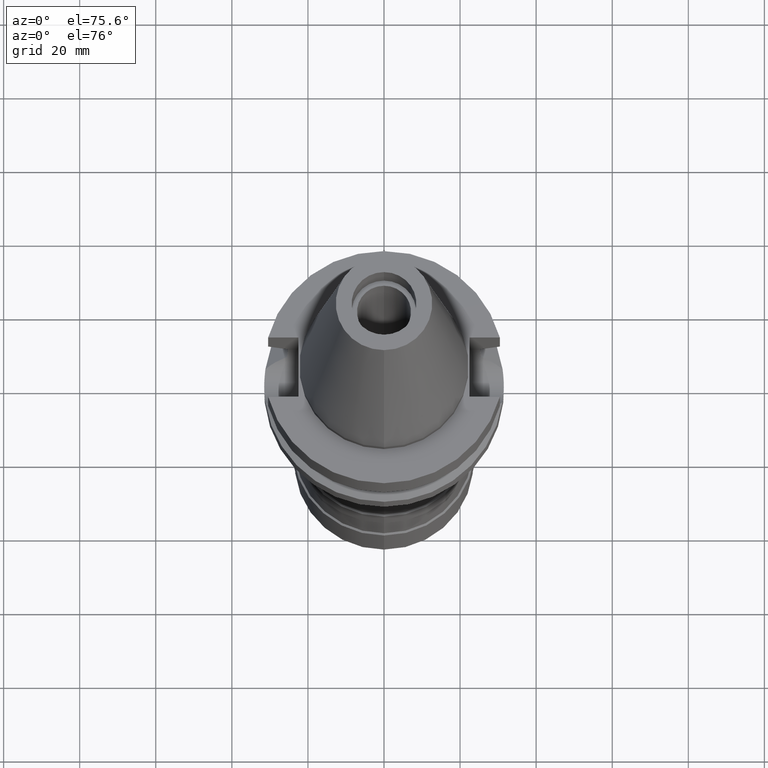
[diagram: clean part render]
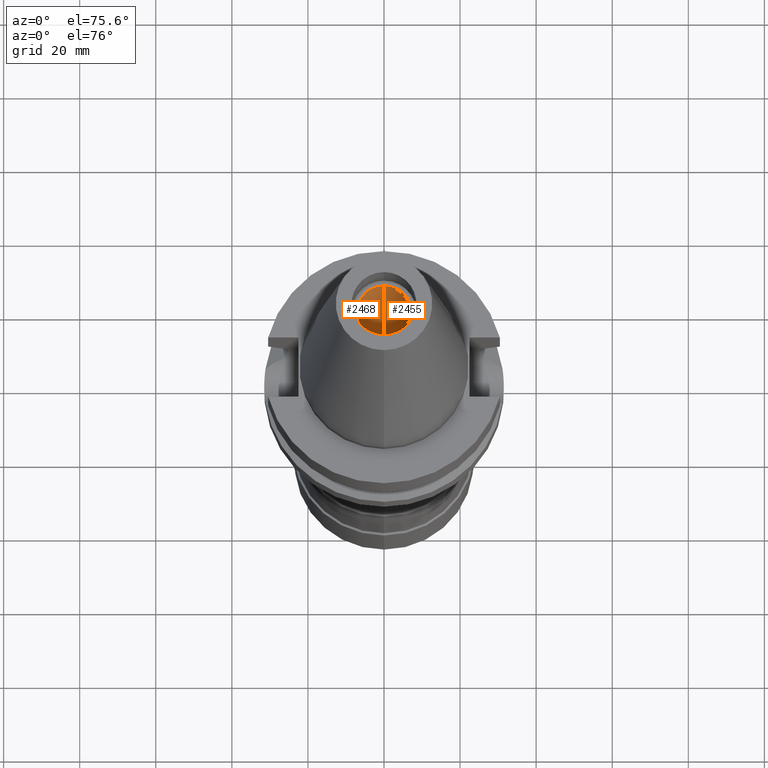
[diagram: same view with one multi-face feature highlighted, each face labeled with its STEP entity id]
A machine part, auxiliary view. The highlighted faces form ONE feature: a constant-radius fillet chain: 2 tangent blend faces with common blend radius 7.1 mm. The faces share edges in the B-rep.
Their STEP definitions:
[1] entity #2455 (Cylinder):
#1213=DIRECTION('',(0.E0,0.E0,1.E0));
#1214=VECTOR('',#1213,5.64E1);
#1215=CARTESIAN_POINT('',(0.E0,7.1E0,-5.684341886081E-14));
#1216=LINE('',#1215,#1214);
#1220=CARTESIAN_POINT('',(0.E0,2.129905713077E-14,-5.684341886081E-14));
#1221=DIRECTION('',(0.E0,0.E0,1.E0));
#1222=DIRECTION('',(0.E0,-1.E0,0.E0));
#1223=AXIS2_PLACEMENT_3D('',#1220,#1221,#1222);
#1228=DIRECTION('',(0.E0,0.E0,1.E0));
#1229=VECTOR('',#1228,5.64E1);
#1230=CARTESIAN_POINT('',(0.E0,-7.1E0,-5.684341886081E-14));
#1231=LINE('',#1230,#1229);
#1251=CARTESIAN_POINT('',(0.E0,2.129905713077E-14,5.64E1));
#1252=DIRECTION('',(0.E0,0.E0,1.E0));
#1253=DIRECTION('',(0.E0,-1.E0,0.E0));
#1254=AXIS2_PLACEMENT_3D('',#1251,#1252,#1253);
#1293=CARTESIAN_POINT('',(0.E0,-7.1E0,5.64E1));
#1294=CARTESIAN_POINT('',(0.E0,7.1E0,5.64E1));
#1295=VERTEX_POINT('',#1293);
#1296=VERTEX_POINT('',#1294);
#1297=CARTESIAN_POINT('',(0.E0,7.1E0,-5.684341886081E-14));
#1298=VERTEX_POINT('',#1297);
#1299=CARTESIAN_POINT('',(0.E0,-7.1E0,-5.684341886081E-14));
#1300=VERTEX_POINT('',#1299);
#2441=CARTESIAN_POINT('',(0.E0,2.129905713077E-14,7.392E1));
#2442=DIRECTION('',(0.E0,0.E0,-1.E0));
#2443=DIRECTION('',(0.E0,-1.E0,0.E0));
#2444=AXIS2_PLACEMENT_3D('',#2441,#2442,#2443);
#2445=CYLINDRICAL_SURFACE('',#2444,7.1E0);
#2447=ORIENTED_EDGE('',*,*,#2446,.T.);
#2449=ORIENTED_EDGE('',*,*,#2448,.F.);
#2451=ORIENTED_EDGE('',*,*,#2450,.F.);
#2452=ORIENTED_EDGE('',*,*,#2434,.T.);
#2453=EDGE_LOOP('',(#2447,#2449,#2451,#2452));
#2454=FACE_OUTER_BOUND('',#2453,.F.);
#1224=CIRCLE('',#1223,7.1E0);
#1255=CIRCLE('',#1254,7.1E0);
#2434=EDGE_CURVE('',#1300,#1298,#1224,.T.);
#2446=EDGE_CURVE('',#1298,#1296,#1216,.T.);
#2448=EDGE_CURVE('',#1295,#1296,#1255,.T.);
#2450=EDGE_CURVE('',#1300,#1295,#1231,.T.);
#2455=ADVANCED_FACE('',(#2454),#2445,.F.);
[2] entity #2468 (Cylinder):
#1198=CARTESIAN_POINT('',(0.E0,2.129905713077E-14,-5.684341886081E-14));
#1199=DIRECTION('',(0.E0,0.E0,-1.E0));
#1200=DIRECTION('',(0.E0,-1.E0,0.E0));
#1201=AXIS2_PLACEMENT_3D('',#1198,#1199,#1200);
#1213=DIRECTION('',(0.E0,0.E0,1.E0));
#1214=VECTOR('',#1213,5.64E1);
#1215=CARTESIAN_POINT('',(0.E0,7.1E0,-5.684341886081E-14));
#1216=LINE('',#1215,#1214);
#1228=DIRECTION('',(0.E0,0.E0,1.E0));
#1229=VECTOR('',#1228,5.64E1);
#1230=CARTESIAN_POINT('',(0.E0,-7.1E0,-5.684341886081E-14));
#1231=LINE('',#1230,#1229);
#1259=CARTESIAN_POINT('',(0.E0,2.129905713077E-14,5.64E1));
#1260=DIRECTION('',(0.E0,0.E0,1.E0));
#1261=DIRECTION('',(0.E0,1.E0,0.E0));
#1262=AXIS2_PLACEMENT_3D('',#1259,#1260,#1261);
#1293=CARTESIAN_POINT('',(0.E0,-7.1E0,5.64E1));
#1294=CARTESIAN_POINT('',(0.E0,7.1E0,5.64E1));
#1295=VERTEX_POINT('',#1293);
#1296=VERTEX_POINT('',#1294);
#1297=CARTESIAN_POINT('',(0.E0,7.1E0,-5.684341886081E-14));
#1298=VERTEX_POINT('',#1297);
#1299=CARTESIAN_POINT('',(0.E0,-7.1E0,-5.684341886081E-14));
#1300=VERTEX_POINT('',#1299);
#2456=CARTESIAN_POINT('',(0.E0,2.129905713077E-14,7.392E1));
#2457=DIRECTION('',(0.E0,0.E0,-1.E0));
#2458=DIRECTION('',(0.E0,-1.E0,0.E0));
#2459=AXIS2_PLACEMENT_3D('',#2456,#2457,#2458);
#2460=CYLINDRICAL_SURFACE('',#2459,7.1E0);
#2461=ORIENTED_EDGE('',*,*,#2446,.F.);
#2462=ORIENTED_EDGE('',*,*,#2423,.F.);
#2463=ORIENTED_EDGE('',*,*,#2450,.T.);
#2465=ORIENTED_EDGE('',*,*,#2464,.F.);
#2466=EDGE_LOOP('',(#2461,#2462,#2463,#2465));
#2467=FACE_OUTER_BOUND('',#2466,.F.);
#1202=CIRCLE('',#1201,7.1E0);
#1263=CIRCLE('',#1262,7.1E0);
#2423=EDGE_CURVE('',#1300,#1298,#1202,.T.);
#2446=EDGE_CURVE('',#1298,#1296,#1216,.T.);
#2450=EDGE_CURVE('',#1300,#1295,#1231,.T.);
#2464=EDGE_CURVE('',#1296,#1295,#1263,.T.);
#2468=ADVANCED_FACE('',(#2467),#2460,.F.);